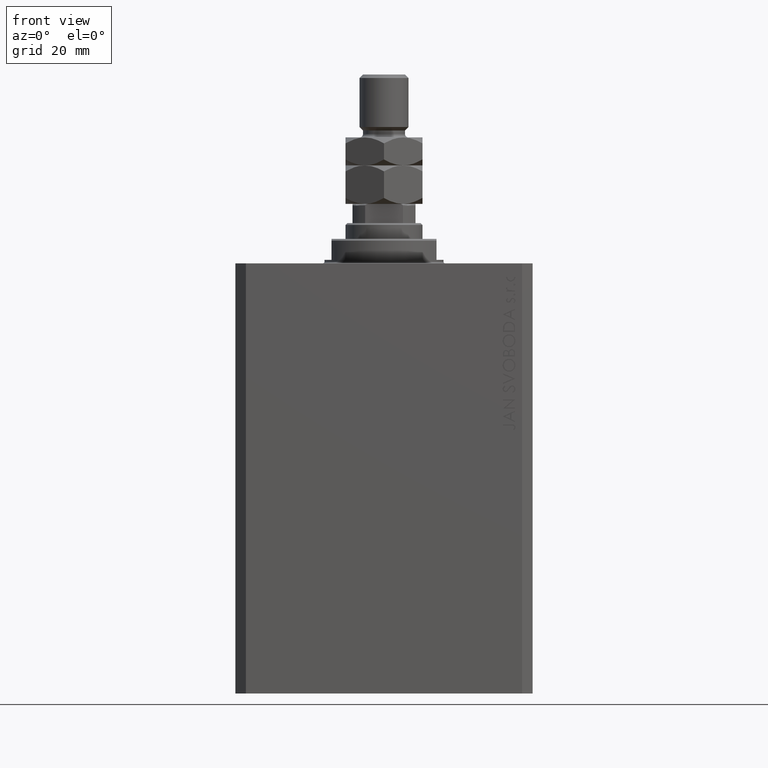
[diagram: clean part render]
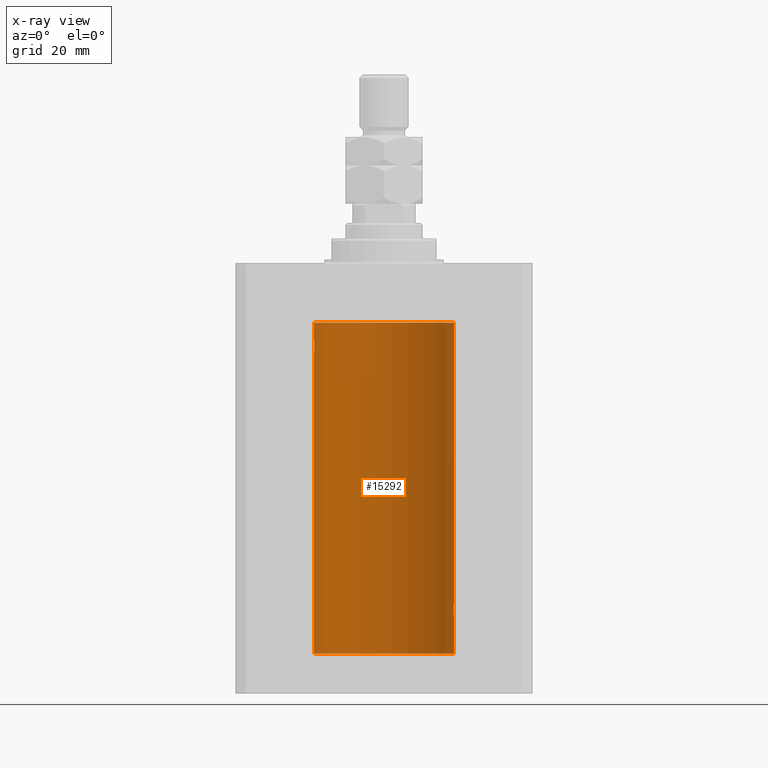
[diagram: x-ray — body ghosted, one internal face saturated and labeled with its STEP entity id]
A machine part, front view, then the same camera in x-ray: the body is ghosted and one INTERNAL B-rep face — a face not visible from any outside direction — is saturated and labeled: STEP entity #15292.
In plain terms, the highlighted cylindrical surface (partial cylindrical patch) has radius 20 mm, axis along (0, 0, 1).
Its self-contained STEP definition (entity closure, byte-faithful):
#579 = CIRCLE ( 'NONE', #18725, 20.00000000000000000 ) ;
#1015 = CARTESIAN_POINT ( 'NONE',  ( 20.00000000000000000, -1.553109350199128042E-23, -97.00000000000000000 ) ) ;
#1310 = CARTESIAN_POINT ( 'NONE',  ( 19.92473605353366040, 1.734984354167257159, -97.99660905888588047 ) ) ;
#1538 = AXIS2_PLACEMENT_3D ( 'NONE', #29459, #44504, #26967 ) ;
#2041 = CARTESIAN_POINT ( 'NONE',  ( 19.97511131722831479, 1.003336743019912936, -97.26498565174388489 ) ) ;
#3035 = CARTESIAN_POINT ( 'NONE',  ( -19.98996196681220638, 0.6450624715427617506, -22.10234886833925572 ) ) ;
#3068 = CARTESIAN_POINT ( 'NONE',  ( -20.00000000000000000, 2.449293598294706513E-15, -111.5999999999999943 ) ) ;
#3098 = VECTOR ( 'NONE', #46245, 1000.000000000000000 ) ;
#3521 = CARTESIAN_POINT ( 'NONE',  ( 19.96307037068151757, 1.219701915132744841, -100.5904134935036751 ) ) ;
#3758 = CARTESIAN_POINT ( 'NONE',  ( 19.93682487288204541, 1.599118048130817149, -100.2291703518122148 ) ) ;
#4358 = CARTESIAN_POINT ( 'NONE',  ( 20.00000000000000000, 0.000000000000000000, -111.5999999999999943 ) ) ;
#7219 = CARTESIAN_POINT ( 'NONE',  ( 19.89974874213236333, 2.000000000000336620, -99.00000000000000000 ) ) ;
#7224 = CARTESIAN_POINT ( 'NONE',  ( 19.92371056170336274, 1.748080295468898537, -100.0060386593725070 ) ) ;
#7469 = CARTESIAN_POINT ( 'NONE',  ( -19.93684595445884611, 1.598854313793185655, -22.77049887769366521 ) ) ;
#8193 = CARTESIAN_POINT ( 'NONE',  ( 19.98066923111604964, 0.8874387315505228857, -100.7971214522023899 ) ) ;
#8376 = CARTESIAN_POINT ( 'NONE',  ( -20.00000000000000000, 2.449293598294706513E-15, -111.5999999999999943 ) ) ;
#8853 = CARTESIAN_POINT ( 'NONE',  ( 0.000000000000000000, 0.000000000000000000, -111.5999999999999943 ) ) ;
#9058 = EDGE_LOOP ( 'NONE', ( #48415, #18856, #46710, #17623, #27764, #11629, #38137, #24509, #13368 ) ) ;
#9209 = CARTESIAN_POINT ( 'NONE',  ( 20.00000000000000000, -1.553109350199128042E-23, -97.00000000000000000 ) ) ;
#10277 = EDGE_CURVE ( 'NONE', #31358, #41587, #579, .T. ) ;
#10455 = CARTESIAN_POINT ( 'NONE',  ( -19.98998539619404013, 0.6443418861413118259, -25.89789687358865322 ) ) ;
#10730 = CARTESIAN_POINT ( 'NONE',  ( 20.00000000000000000, 0.000000000000000000, -17.00000000000000000 ) ) ;
#10950 = CARTESIAN_POINT ( 'NONE',  ( 19.89974874213236689, 2.000000000000336620, -99.26114132155828429 ) ) ;
#11431 = CARTESIAN_POINT ( 'NONE',  ( 19.95643710845398999, 1.322557776536547047, -100.5059384114668717 ) ) ;
#11629 = ORIENTED_EDGE ( 'NONE', *, *, #14009, .T. ) ;
#11697 = CYLINDRICAL_SURFACE ( 'NONE', #1538, 20.00000000000000000 ) ;
#12265 = VERTEX_POINT ( 'NONE', #1015 ) ;
#13368 = ORIENTED_EDGE ( 'NONE', *, *, #24068, .T. ) ;
#13428 = CARTESIAN_POINT ( 'NONE',  ( 19.99867993937906618, 0.2631387813862826053, -97.01308095003095389 ) ) ;
#14009 = EDGE_CURVE ( 'NONE', #12265, #34790, #16208, .T. ) ;
#14178 = CARTESIAN_POINT ( 'NONE',  ( -19.96308513509966787, 1.219458756546270672, -22.40940266542446935 ) ) ;
#14449 = FACE_OUTER_BOUND ( 'NONE', #9058, .T. ) ;
#14663 = CARTESIAN_POINT ( 'NONE',  ( -19.96304379627741454, 1.220099331833899736, -25.59007067689674386 ) ) ;
#15292 = ADVANCED_FACE ( 'NONE', ( #14449 ), #11697, .F. ) ;
#15392 = CARTESIAN_POINT ( 'NONE',  ( 19.99868904672146641, 0.2623009746877876802, -100.9870089850981429 ) ) ;
#15565 = DIRECTION ( 'NONE',  ( 1.000000000000000000, 0.000000000000000000, 0.000000000000000000 ) ) ;
#15812 = DIRECTION ( 'NONE',  ( 0.000000000000000000, 0.000000000000000000, 1.000000000000000000 ) ) ;
#16208 = LINE ( 'NONE', #31200, #3098 ) ;
#16406 = CARTESIAN_POINT ( 'NONE',  ( 19.89974874213236689, 2.000000000000336620, -98.86948983741758923 ) ) ;
#17127 = CARTESIAN_POINT ( 'NONE',  ( 19.99366205580918887, 0.5195372307044503479, -97.06423906555805559 ) ) ;
#17623 = ORIENTED_EDGE ( 'NONE', *, *, #32330, .T. ) ;
#17629 = CARTESIAN_POINT ( 'NONE',  ( -19.89975827978156175, 1.999905101582726719, -23.73819846102561115 ) ) ;
#17875 = CARTESIAN_POINT ( 'NONE',  ( -19.90610216711450420, 1.935912154109700190, -24.51899474186111050 ) ) ;
#18347 = CARTESIAN_POINT ( 'NONE',  ( -19.90106552791689154, 1.987020435121076734, -24.26241417820002155 ) ) ;
#18725 = AXIS2_PLACEMENT_3D ( 'NONE', #8853, #15812, #15565 ) ;
#18832 = CARTESIAN_POINT ( 'NONE',  ( 19.89974874213236333, 2.000000000000336620, -99.00000000000000000 ) ) ;
#18856 = ORIENTED_EDGE ( 'NONE', *, *, #10277, .F. ) ;
#19546 = DIRECTION ( 'NONE',  ( 0.000000000000000000, 0.000000000000000000, 1.000000000000000000 ) ) ;
#20570 = CARTESIAN_POINT ( 'NONE',  ( 19.93681418096177183, 1.590194273034202688, -97.78006300821549246 ) ) ;
#20811 = CARTESIAN_POINT ( 'NONE',  ( 19.89974874213236333, 2.000000000000336620, -99.00000000000000000 ) ) ;
#21053 = CARTESIAN_POINT ( 'NONE',  ( 19.91911433329477177, 1.797615436563606561, -98.11357106075776358 ) ) ;
#21803 = CARTESIAN_POINT ( 'NONE',  ( -19.90978941500366872, 1.898109641280506521, -24.64371130639850804 ) ) ;
#22526 = CARTESIAN_POINT ( 'NONE',  ( -19.94330239452387232, 1.507796451871729504, -25.32060165083834136 ) ) ;
#23103 = CARTESIAN_POINT ( 'NONE',  ( -20.00000000000000000, 2.449293598294706513E-15, -17.00000000000000000 ) ) ;
#23192 = EDGE_CURVE ( 'NONE', #40300, #12265, #41941, .T. ) ;
#23241 = CARTESIAN_POINT ( 'NONE',  ( 19.98995738555794688, 0.6452086089795042723, -100.8976034536016044 ) ) ;
#24068 = EDGE_CURVE ( 'NONE', #45425, #43075, #36627, .T. ) ;
#24338 = VECTOR ( 'NONE', #45936, 1000.000000000000000 ) ;
#24509 = ORIENTED_EDGE ( 'NONE', *, *, #32672, .F. ) ;
#25485 = CARTESIAN_POINT ( 'NONE',  ( -19.99867931558985745, 0.2631998640366461362, -25.98691292011447374 ) ) ;
#25729 = CARTESIAN_POINT ( 'NONE',  ( -19.99868965376115071, 0.2622407139811102628, -22.01298505384673732 ) ) ;
#25974 = CARTESIAN_POINT ( 'NONE',  ( 19.99369727434158506, 0.5181068333511539281, -100.9361228828299630 ) ) ;
#26210 = CARTESIAN_POINT ( 'NONE',  ( -19.95654117037011588, 1.321069663197671273, -25.50738641543989615 ) ) ;
#26211 = CARTESIAN_POINT ( 'NONE',  ( 20.00000000000000000, 1.967327733996653312E-15, -101.0000000000000000 ) ) ;
#26690 = CARTESIAN_POINT ( 'NONE',  ( 19.90520750556430229, 1.947496194184494378, -99.52455416993456083 ) ) ;
#26967 = DIRECTION ( 'NONE',  ( 1.000000000000000000, 0.000000000000000000, 0.000000000000000000 ) ) ;
#27719 = CARTESIAN_POINT ( 'NONE',  ( 19.95655800881796083, 1.320814917468111194, -97.49239309359698780 ) ) ;
#27764 = ORIENTED_EDGE ( 'NONE', *, *, #23192, .T. ) ;
#27966 = CARTESIAN_POINT ( 'NONE',  ( 19.94332236886613074, 1.507531922383789524, -97.67909949904074551 ) ) ;
#28906 = EDGE_CURVE ( 'NONE', #34790, #43522, #32537, .T. ) ;
#28936 = CARTESIAN_POINT ( 'NONE',  ( -19.98067755938510714, 0.8872481584516758168, -22.20278656943303375 ) ) ;
#29184 = CARTESIAN_POINT ( 'NONE',  ( -19.99365919015135518, 0.5196544277756711683, -25.93573148867292133 ) ) ;
#29431 = CARTESIAN_POINT ( 'NONE',  ( -19.93679350243183990, 1.590453176650918676, -25.21960275349743696 ) ) ;
#29459 = CARTESIAN_POINT ( 'NONE',  ( 0.000000000000000000, 0.000000000000000000, -111.5999999999999943 ) ) ;
#29512 = CARTESIAN_POINT ( 'NONE',  ( -20.00000000000000000, 2.449293598294706513E-15, -111.5999999999999943 ) ) ;
#29618 = CARTESIAN_POINT ( 'NONE',  ( -20.00000000000000000, -1.269718202421245235E-16, -22.00000000000000000 ) ) ;
#29671 = CARTESIAN_POINT ( 'NONE',  ( -19.92373272380676497, 1.747830109444745927, -22.99354240926169624 ) ) ;
#29907 = CARTESIAN_POINT ( 'NONE',  ( -20.00000000000000000, 2.449293582768784389E-15, -25.99999999999999645 ) ) ;
#31200 = CARTESIAN_POINT ( 'NONE',  ( 20.00000000000000000, 0.000000000000000000, -111.5999999999999943 ) ) ;
#31358 = VERTEX_POINT ( 'NONE', #35341 ) ;
#31403 = CARTESIAN_POINT ( 'NONE',  ( 19.98998987637478209, 0.6441982143731844745, -97.10205654639885609 ) ) ;
#31646 = CARTESIAN_POINT ( 'NONE',  ( 19.96305842179988588, 1.219858681717333138, -97.40974712539565417 ) ) ;
#31823 = VERTEX_POINT ( 'NONE', #44400 ) ;
#32330 = EDGE_CURVE ( 'NONE', #31823, #40300, #33443, .T. ) ;
#32537 = CIRCLE ( 'NONE', #42766, 20.00000000000000000 ) ;
#32629 = CARTESIAN_POINT ( 'NONE',  ( -19.99999999999999645, 0.1322335637814733289, -21.99999999999999645 ) ) ;
#32672 = EDGE_CURVE ( 'NONE', #45425, #43522, #34512, .T. ) ;
#33358 = CARTESIAN_POINT ( 'NONE',  ( -19.98070694681040038, 0.8865903856744316025, -25.79753901127162763 ) ) ;
#33443 = B_SPLINE_CURVE_WITH_KNOTS ( 'NONE', 3,
 ( #26211, #45197, #15392, #25974, #23241, #8193, #41249, #3521, #11431, #3758, #7224, #26690, #10950, #18832 ),
 .UNSPECIFIED., .F., .F.,
 ( 4, 2, 2, 2, 2, 2, 4 ),
 ( 1.911692756536875168E-18, 0.0003911418372936038769, 0.0007822836745872059107, 0.001173425511880807782, 0.001564567349174409870, 0.002346851023761584772, 0.003129134698348759892 ),
 .UNSPECIFIED. ) ;
#33599 = CARTESIAN_POINT ( 'NONE',  ( -20.00000000000000000, -1.269718202421245235E-16, -22.00000000000000000 ) ) ;
#33833 = CARTESIAN_POINT ( 'NONE',  ( 0.000000000000000000, 0.000000000000000000, -17.00000000000000000 ) ) ;
#34095 = LINE ( 'NONE', #29512, #24338 ) ;
#34444 = LINE ( 'NONE', #4358, #36708 ) ;
#34512 = LINE ( 'NONE', #8376, #38992 ) ;
#34790 = VERTEX_POINT ( 'NONE', #10730 ) ;
#35341 = CARTESIAN_POINT ( 'NONE',  ( 20.00000000000000000, 0.000000000000000000, -111.5999999999999943 ) ) ;
#36627 = B_SPLINE_CURVE_WITH_KNOTS ( 'NONE', 3,
 ( #33599, #32629, #25729, #37303, #3035, #28936, #44226, #14178, #40282, #7469, #29671, #48650, #17629, #44711, #18347, #17875, #21803, #43982, #44956, #29431, #22526, #26210, #14663, #47682, #33358, #10455, #29184, #25485, #48411, #29907 ),
 .UNSPECIFIED., .F., .F.,
 ( 4, 2, 2, 2, 2, 2, 2, 2, 2, 2, 2, 2, 2, 2, 4 ),
 ( 1.233811249882840126E-19, 0.0003910512220831129202, 0.0007821024441662257319, 0.001173153666249338381, 0.001564204888332450813, 0.002346307332498675461, 0.003128409776664900326, 0.003519460998748018179, 0.003910512220831135165, 0.004301563442914253452, 0.004692614664997370871, 0.005083665887080488291, 0.005474717109163606578, 0.005865768331246723997, 0.006256819553329842284 ),
 .UNSPECIFIED. ) ;
#36708 = VECTOR ( 'NONE', #45542, 1000.000000000000000 ) ;
#37303 = CARTESIAN_POINT ( 'NONE',  ( -19.99370013622814568, 0.5179893069484621249, -22.06384771616670903 ) ) ;
#38137 = ORIENTED_EDGE ( 'NONE', *, *, #28906, .T. ) ;
#38992 = VECTOR ( 'NONE', #42650, 1000.000000000000000 ) ;
#39055 = CARTESIAN_POINT ( 'NONE',  ( 19.90107458412648711, 1.986930174329755161, -98.73692013941791856 ) ) ;
#39293 = CARTESIAN_POINT ( 'NONE',  ( 19.98071536551674754, 0.8863972468204365240, -97.20236805399481739 ) ) ;
#39765 = EDGE_CURVE ( 'NONE', #31358, #31823, #34444, .T. ) ;
#40282 = CARTESIAN_POINT ( 'NONE',  ( -19.95645382900617903, 1.322305185229311064, -22.49384229619286657 ) ) ;
#40300 = VERTEX_POINT ( 'NONE', #7219 ) ;
#40455 = CARTESIAN_POINT ( 'NONE',  ( -20.00000000000000000, 2.449293582768784389E-15, -25.99999999999999645 ) ) ;
#41249 = CARTESIAN_POINT ( 'NONE',  ( 19.97516523393783316, 1.002309963754524524, -100.7356447155611079 ) ) ;
#41587 = VERTEX_POINT ( 'NONE', #3068 ) ;
#41941 = B_SPLINE_CURVE_WITH_KNOTS ( 'NONE', 3,
 ( #20811, #16406, #39055, #42757, #46937, #21053, #1310, #20570, #27966, #27719, #31646, #2041, #39293, #31403, #17127, #13428, #42999, #9209 ),
 .UNSPECIFIED., .F., .F.,
 ( 4, 2, 2, 2, 2, 2, 2, 2, 4 ),
 ( 0.003129134698348759892, 0.003520095305221480463, 0.003911055912094201469, 0.004302016518966922040, 0.004692977125839642612, 0.005083937732712363183, 0.005474898339585083755, 0.005865858946457804327, 0.006256819553330524898 ),
 .UNSPECIFIED. ) ;
#42650 = DIRECTION ( 'NONE',  ( -0.000000000000000000, -0.000000000000000000, 1.000000000000000000 ) ) ;
#42757 = CARTESIAN_POINT ( 'NONE',  ( 19.90611763847108762, 1.935753518394741635, -98.48042243434849752 ) ) ;
#42766 = AXIS2_PLACEMENT_3D ( 'NONE', #33833, #19546, #45424 ) ;
#42999 = CARTESIAN_POINT ( 'NONE',  ( 20.00000000000000000, 0.1305404422160218736, -96.99999999999998579 ) ) ;
#43075 = VERTEX_POINT ( 'NONE', #40455 ) ;
#43522 = VERTEX_POINT ( 'NONE', #23103 ) ;
#43982 = CARTESIAN_POINT ( 'NONE',  ( -19.91909332229799290, 1.797847595792767317, -24.88596189455837759 ) ) ;
#44226 = CARTESIAN_POINT ( 'NONE',  ( -19.97517568592526160, 1.002099838626314909, -22.26423634872104884 ) ) ;
#44400 = CARTESIAN_POINT ( 'NONE',  ( 20.00000000000000000, 1.967327733996653312E-15, -101.0000000000000000 ) ) ;
#44504 = DIRECTION ( 'NONE',  ( -0.000000000000000000, -0.000000000000000000, 1.000000000000000000 ) ) ;
#44711 = CARTESIAN_POINT ( 'NONE',  ( -19.89974399317116394, 2.000047251570890250, -24.12981181290706445 ) ) ;
#44956 = CARTESIAN_POINT ( 'NONE',  ( -19.92471474456649716, 1.735228749583835439, -25.00297226784954674 ) ) ;
#45197 = CARTESIAN_POINT ( 'NONE',  ( 20.00000000000000000, 0.1322642052205942886, -101.0000000000000426 ) ) ;
#45424 = DIRECTION ( 'NONE',  ( 1.000000000000000000, 0.000000000000000000, 0.000000000000000000 ) ) ;
#45425 = VERTEX_POINT ( 'NONE', #29618 ) ;
#45542 = DIRECTION ( 'NONE',  ( -0.000000000000000000, -0.000000000000000000, 1.000000000000000000 ) ) ;
#45936 = DIRECTION ( 'NONE',  ( -0.000000000000000000, -0.000000000000000000, 1.000000000000000000 ) ) ;
#46245 = DIRECTION ( 'NONE',  ( -0.000000000000000000, -0.000000000000000000, 1.000000000000000000 ) ) ;
#46710 = ORIENTED_EDGE ( 'NONE', *, *, #39765, .T. ) ;
#46793 = EDGE_CURVE ( 'NONE', #41587, #43075, #34095, .T. ) ;
#46937 = CARTESIAN_POINT ( 'NONE',  ( 19.90980722176544049, 1.897923463361389285, -98.35574535366806970 ) ) ;
#47682 = CARTESIAN_POINT ( 'NONE',  ( -19.97510079925438475, 1.003547732426807171, -25.73489454601984150 ) ) ;
#48411 = CARTESIAN_POINT ( 'NONE',  ( -19.99999999999999645, 0.1305706983324449733, -25.99999999999998934 ) ) ;
#48415 = ORIENTED_EDGE ( 'NONE', *, *, #46793, .F. ) ;
#48650 = CARTESIAN_POINT ( 'NONE',  ( -19.90522393307484705, 1.947330458682957177, -23.47486091545001941 ) ) ;